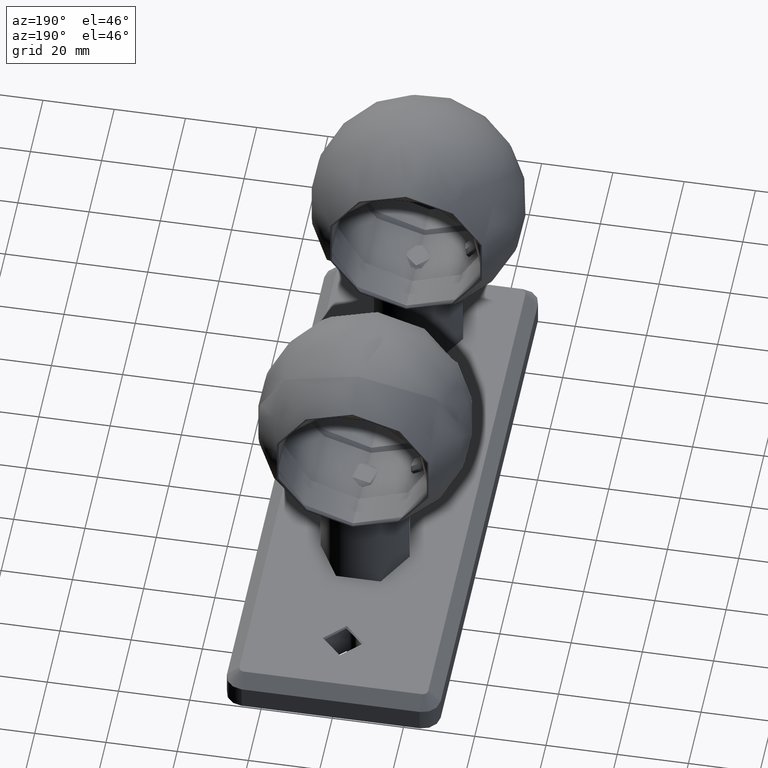
[diagram: clean part render]
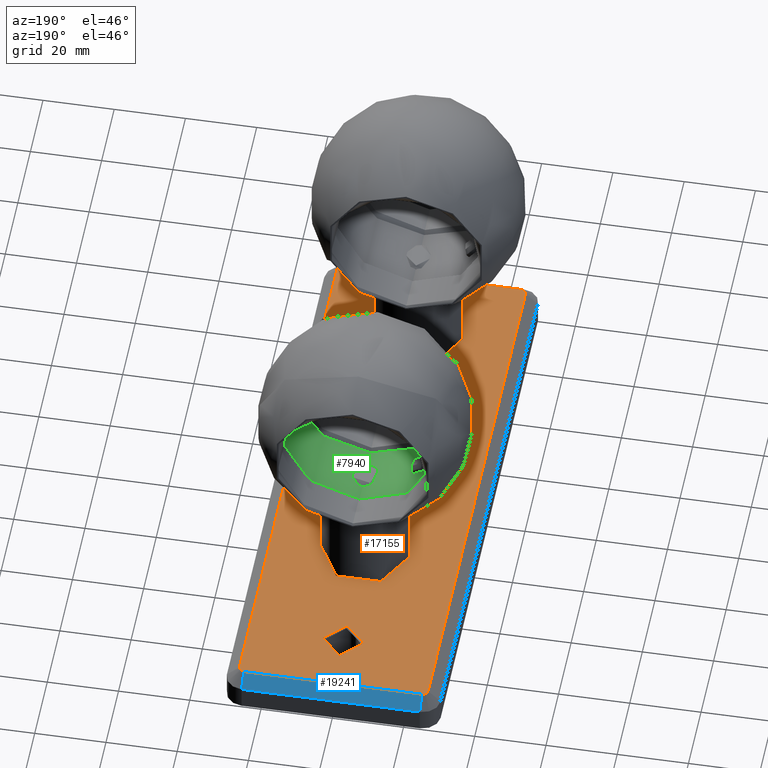
[diagram: same view with three faces highlighted in distinct colors, each labeled with its STEP entity id]
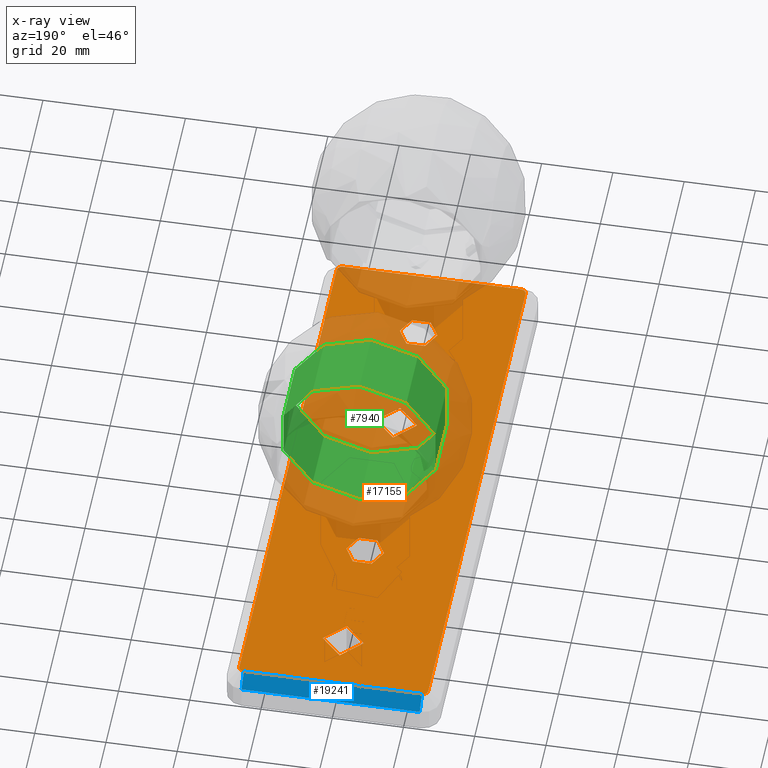
[diagram: x-ray of the same camera — body ghosted, the three highlighted faces saturated]
A machine part, auxiliary view with three faces highlighted in distinct colors.
The next image is the same camera in x-ray (body ghosted, the three faces saturated) — at least one of them is partly hidden behind the body in this view.
Their STEP definitions:

[orange] entity #17155 — the highlighted planar face has unit normal (0, 0, 1).
#44 = CARTESIAN_POINT ( 'NONE',  ( -26.50000000000001800, -77.49999999999995700, 10.00000000000000000 ) ) ;
#139 = FACE_OUTER_BOUND ( 'NONE', #4693, .T. ) ;
#731 = CARTESIAN_POINT ( 'NONE',  ( -1.734723475976807100E-014, -57.49999999999997200, 10.00000000000000000 ) ) ;
#781 = DIRECTION ( 'NONE',  ( 0.0000000000000000000, 0.0000000000000000000, 1.000000000000000000 ) ) ;
#876 = VERTEX_POINT ( 'NONE', #16998 ) ;
#942 = ORIENTED_EDGE ( 'NONE', *, *, #17408, .F. ) ;
#949 = EDGE_LOOP ( 'NONE', ( #942 ) ) ;
#980 = DIRECTION ( 'NONE',  ( 1.000000000000000000, 0.0000000000000000000, 0.0000000000000000000 ) ) ;
#1466 = CARTESIAN_POINT ( 'NONE',  ( 5.750000000000005300, 62.50000000000002800, 10.00000000000000000 ) ) ;
#1741 = CARTESIAN_POINT ( 'NONE',  ( -24.99999999999996100, -79.00000000000000000, 10.00000000000000000 ) ) ;
#2012 = VERTEX_POINT ( 'NONE', #5234 ) ;
#2332 = VECTOR ( 'NONE', #9188, 1000.000000000000000 ) ;
#2532 = FACE_BOUND ( 'NONE', #9348, .T. ) ;
#2556 = DIRECTION ( 'NONE',  ( 1.000000000000000000, 0.0000000000000000000, 0.0000000000000000000 ) ) ;
#2588 = DIRECTION ( 'NONE',  ( 1.000000000000000000, 0.0000000000000000000, 0.0000000000000000000 ) ) ;
#3309 = ORIENTED_EDGE ( 'NONE', *, *, #5680, .T. ) ;
#3859 = DIRECTION ( 'NONE',  ( 0.0000000000000000000, 0.0000000000000000000, 1.000000000000000000 ) ) ;
#3908 = CARTESIAN_POINT ( 'NONE',  ( -6.735557395310445800E-015, 27.50000000000003200, 10.00000000000000000 ) ) ;
#3960 = FACE_BOUND ( 'NONE', #18240, .T. ) ;
#4006 = VECTOR ( 'NONE', #18345, 1000.000000000000000 ) ;
#4008 = ORIENTED_EDGE ( 'NONE', *, *, #4684, .T. ) ;
#4118 = AXIS2_PLACEMENT_3D ( 'NONE', #16008, #9914, #5354 ) ;
#4120 = CARTESIAN_POINT ( 'NONE',  ( 25.00000000000000000, -77.49999999999997200, 10.00000000000000000 ) ) ;
#4429 = VERTEX_POINT ( 'NONE', #12190 ) ;
#4473 = AXIS2_PLACEMENT_3D ( 'NONE', #12085, #5746, #7225 ) ;
#4684 = EDGE_CURVE ( 'NONE', #4429, #19263, #7451, .T. ) ;
#4693 = EDGE_LOOP ( 'NONE', ( #16748, #19088, #4008, #17733, #6292, #16133, #3309, #18596 ) ) ;
#5234 = CARTESIAN_POINT ( 'NONE',  ( 26.50000000000000700, 77.50000000000000000, 10.00000000000000000 ) ) ;
#5279 = CARTESIAN_POINT ( 'NONE',  ( -24.99999999999997900, 79.00000000000005700, 10.00000000000000000 ) ) ;
#5354 = DIRECTION ( 'NONE',  ( 1.000000000000000000, 0.0000000000000000000, 0.0000000000000000000 ) ) ;
#5401 = EDGE_CURVE ( 'NONE', #8980, #8980, #19690, .T. ) ;
#5405 = CARTESIAN_POINT ( 'NONE',  ( 0.0000000000000000000, -22.49999999999997900, 10.00000000000000000 ) ) ;
#5572 = AXIS2_PLACEMENT_3D ( 'NONE', #3908, #781, #6946 ) ;
#5674 = CARTESIAN_POINT ( 'NONE',  ( 24.99999999999996800, -79.00000000000000000, 10.00000000000000000 ) ) ;
#5680 = EDGE_CURVE ( 'NONE', #876, #9079, #7434, .T. ) ;
#5746 = DIRECTION ( 'NONE',  ( 0.0000000000000000000, 0.0000000000000000000, 1.000000000000000000 ) ) ;
#5838 = VERTEX_POINT ( 'NONE', #44 ) ;
#6292 = ORIENTED_EDGE ( 'NONE', *, *, #13957, .T. ) ;
#6407 = CIRCLE ( 'NONE', #4118, 5.750000000000005300 ) ;
#6946 = DIRECTION ( 'NONE',  ( 1.000000000000000000, 0.0000000000000000000, 0.0000000000000000000 ) ) ;
#7225 = DIRECTION ( 'NONE',  ( 1.000000000000000000, 0.0000000000000000000, 0.0000000000000000000 ) ) ;
#7259 = CARTESIAN_POINT ( 'NONE',  ( -24.99999999999999300, -77.49999999999997200, 10.00000000000000000 ) ) ;
#7433 = EDGE_CURVE ( 'NONE', #7495, #876, #18916, .T. ) ;
#7434 = CIRCLE ( 'NONE', #4473, 1.500000000000025500 ) ;
#7451 = CIRCLE ( 'NONE', #14849, 1.500000000000025500 ) ;
#7495 = VERTEX_POINT ( 'NONE', #9228 ) ;
#7566 = CARTESIAN_POINT ( 'NONE',  ( 5.249999999999991100, 27.50000000000003200, 10.00000000000000000 ) ) ;
#7973 = AXIS2_PLACEMENT_3D ( 'NONE', #5405, #13074, #2588 ) ;
#8079 = FACE_BOUND ( 'NONE', #8171, .T. ) ;
#8171 = EDGE_LOOP ( 'NONE', ( #15517 ) ) ;
#8796 = CIRCLE ( 'NONE', #5572, 5.249999999999997300 ) ;
#8980 = VERTEX_POINT ( 'NONE', #11835 ) ;
#9030 = EDGE_CURVE ( 'NONE', #19263, #2012, #19114, .T. ) ;
#9060 = PLANE ( 'NONE',  #12096 ) ;
#9079 = VERTEX_POINT ( 'NONE', #9778 ) ;
#9188 = DIRECTION ( 'NONE',  ( -1.566847010559697300E-016, 1.000000000000000000, 0.0000000000000000000 ) ) ;
#9228 = CARTESIAN_POINT ( 'NONE',  ( 24.99999999999996800, 79.00000000000005700, 10.00000000000000000 ) ) ;
#9348 = EDGE_LOOP ( 'NONE', ( #17568 ) ) ;
#9778 = CARTESIAN_POINT ( 'NONE',  ( -26.50000000000003900, 77.50000000000000000, 10.00000000000000000 ) ) ;
#9914 = DIRECTION ( 'NONE',  ( -0.0000000000000000000, -0.0000000000000000000, -1.000000000000000000 ) ) ;
#9942 = EDGE_CURVE ( 'NONE', #9079, #5838, #15264, .T. ) ;
#10630 = VERTEX_POINT ( 'NONE', #1466 ) ;
#10696 = CARTESIAN_POINT ( 'NONE',  ( 5.249999999999980500, -57.49999999999997200, 10.00000000000000000 ) ) ;
#10904 = CIRCLE ( 'NONE', #18710, 1.500000000000029100 ) ;
#11341 = VERTEX_POINT ( 'NONE', #10696 ) ;
#11777 = EDGE_CURVE ( 'NONE', #10630, #10630, #6407, .T. ) ;
#11835 = CARTESIAN_POINT ( 'NONE',  ( 5.750000000000005300, -22.49999999999997900, 10.00000000000000000 ) ) ;
#12085 = CARTESIAN_POINT ( 'NONE',  ( -25.00000000000001100, 77.50000000000002800, 10.00000000000000000 ) ) ;
#12096 = AXIS2_PLACEMENT_3D ( 'NONE', #16496, #18245, #19788 ) ;
#12110 = VECTOR ( 'NONE', #980, 1000.000000000000000 ) ;
#12180 = VERTEX_POINT ( 'NONE', #1741 ) ;
#12190 = CARTESIAN_POINT ( 'NONE',  ( 24.99999999999996800, -79.00000000000000000, 10.00000000000000000 ) ) ;
#12416 = VECTOR ( 'NONE', #16406, 1000.000000000000000 ) ;
#12852 = ORIENTED_EDGE ( 'NONE', *, *, #5401, .T. ) ;
#12941 = DIRECTION ( 'NONE',  ( 0.0000000000000000000, 0.0000000000000000000, 1.000000000000000000 ) ) ;
#13074 = DIRECTION ( 'NONE',  ( -0.0000000000000000000, -0.0000000000000000000, -1.000000000000000000 ) ) ;
#13482 = DIRECTION ( 'NONE',  ( 0.0000000000000000000, 0.0000000000000000000, 1.000000000000000000 ) ) ;
#13780 = CIRCLE ( 'NONE', #17257, 5.249999999999997300 ) ;
#13957 = EDGE_CURVE ( 'NONE', #2012, #7495, #14329, .T. ) ;
#14329 = CIRCLE ( 'NONE', #18020, 1.500000000000029100 ) ;
#14579 = DIRECTION ( 'NONE',  ( 1.000000000000000000, 0.0000000000000000000, 0.0000000000000000000 ) ) ;
#14744 = DIRECTION ( 'NONE',  ( 0.0000000000000000000, 0.0000000000000000000, 1.000000000000000000 ) ) ;
#14849 = AXIS2_PLACEMENT_3D ( 'NONE', #4120, #13482, #14899 ) ;
#14899 = DIRECTION ( 'NONE',  ( 1.000000000000000000, 0.0000000000000000000, 0.0000000000000000000 ) ) ;
#15264 = LINE ( 'NONE', #18469, #4006 ) ;
#15503 = LINE ( 'NONE', #5674, #12110 ) ;
#15517 = ORIENTED_EDGE ( 'NONE', *, *, #16425, .F. ) ;
#16008 = CARTESIAN_POINT ( 'NONE',  ( 0.0000000000000000000, 62.50000000000002800, 10.00000000000000000 ) ) ;
#16133 = ORIENTED_EDGE ( 'NONE', *, *, #7433, .T. ) ;
#16375 = CARTESIAN_POINT ( 'NONE',  ( 26.50000000000002800, -77.49999999999995700, 10.00000000000000000 ) ) ;
#16392 = VERTEX_POINT ( 'NONE', #7566 ) ;
#16406 = DIRECTION ( 'NONE',  ( -1.000000000000000000, 0.0000000000000000000, 0.0000000000000000000 ) ) ;
#16425 = EDGE_CURVE ( 'NONE', #16392, #16392, #8796, .T. ) ;
#16449 = EDGE_CURVE ( 'NONE', #12180, #4429, #15503, .T. ) ;
#16496 = CARTESIAN_POINT ( 'NONE',  ( 25.00000000000000000, -77.49999999999997200, 10.00000000000000000 ) ) ;
#16748 = ORIENTED_EDGE ( 'NONE', *, *, #19110, .T. ) ;
#16812 = CARTESIAN_POINT ( 'NONE',  ( 26.50000000000000400, 77.50000000000000000, 10.00000000000000000 ) ) ;
#16998 = CARTESIAN_POINT ( 'NONE',  ( -25.00000000000000000, 79.00000000000005700, 10.00000000000000000 ) ) ;
#17155 = ADVANCED_FACE ( 'NONE', ( #17885, #8079, #139, #2532, #3960 ), #9060, .T. ) ;
#17257 = AXIS2_PLACEMENT_3D ( 'NONE', #731, #3859, #14579 ) ;
#17398 = DIRECTION ( 'NONE',  ( 1.000000000000000000, 0.0000000000000000000, 0.0000000000000000000 ) ) ;
#17408 = EDGE_CURVE ( 'NONE', #11341, #11341, #13780, .T. ) ;
#17568 = ORIENTED_EDGE ( 'NONE', *, *, #11777, .T. ) ;
#17733 = ORIENTED_EDGE ( 'NONE', *, *, #9030, .T. ) ;
#17885 = FACE_BOUND ( 'NONE', #949, .T. ) ;
#18020 = AXIS2_PLACEMENT_3D ( 'NONE', #19204, #12941, #17398 ) ;
#18240 = EDGE_LOOP ( 'NONE', ( #12852 ) ) ;
#18245 = DIRECTION ( 'NONE',  ( 0.0000000000000000000, 0.0000000000000000000, 1.000000000000000000 ) ) ;
#18345 = DIRECTION ( 'NONE',  ( 1.119176436114069600E-016, -1.000000000000000000, 0.0000000000000000000 ) ) ;
#18469 = CARTESIAN_POINT ( 'NONE',  ( -26.50000000000001800, -77.49999999999994300, 10.00000000000000000 ) ) ;
#18596 = ORIENTED_EDGE ( 'NONE', *, *, #9942, .T. ) ;
#18710 = AXIS2_PLACEMENT_3D ( 'NONE', #7259, #14744, #2556 ) ;
#18916 = LINE ( 'NONE', #5279, #12416 ) ;
#19088 = ORIENTED_EDGE ( 'NONE', *, *, #16449, .T. ) ;
#19110 = EDGE_CURVE ( 'NONE', #5838, #12180, #10904, .T. ) ;
#19114 = LINE ( 'NONE', #16812, #2332 ) ;
#19204 = CARTESIAN_POINT ( 'NONE',  ( 24.99999999999997900, 77.50000000000002800, 10.00000000000000000 ) ) ;
#19263 = VERTEX_POINT ( 'NONE', #16375 ) ;
#19690 = CIRCLE ( 'NONE', #7973, 5.750000000000005300 ) ;
#19788 = DIRECTION ( 'NONE',  ( 1.000000000000000000, 0.0000000000000000000, -0.0000000000000000000 ) ) ;

[blue] entity #19241 — the highlighted planar face has unit normal (0, 0.7071, 0.7071).
#415 = CARTESIAN_POINT ( 'NONE',  ( -25.00000000000000000, 79.00000000000005700, 10.00000000000000000 ) ) ;
#480 = DIRECTION ( 'NONE',  ( 4.906538933386820900E-015, 0.7071067811865461300, -0.7071067811865489100 ) ) ;
#876 = VERTEX_POINT ( 'NONE', #16998 ) ;
#1841 = EDGE_LOOP ( 'NONE', ( #13103, #6544, #7662, #9375 ) ) ;
#2299 = VERTEX_POINT ( 'NONE', #13878 ) ;
#2601 = LINE ( 'NONE', #6013, #8367 ) ;
#4016 = PLANE ( 'NONE',  #19734 ) ;
#5279 = CARTESIAN_POINT ( 'NONE',  ( -24.99999999999997900, 79.00000000000005700, 10.00000000000000000 ) ) ;
#6013 = CARTESIAN_POINT ( 'NONE',  ( 24.99999999999994300, 82.50000000000002800, 6.500000000000009800 ) ) ;
#6544 = ORIENTED_EDGE ( 'NONE', *, *, #7492, .F. ) ;
#6944 = VECTOR ( 'NONE', #13672, 1000.000000000000100 ) ;
#7071 = DIRECTION ( 'NONE',  ( 0.0000000000000000000, 0.7071067811865489100, 0.7071067811865461300 ) ) ;
#7433 = EDGE_CURVE ( 'NONE', #7495, #876, #18916, .T. ) ;
#7492 = EDGE_CURVE ( 'NONE', #2299, #10062, #2601, .T. ) ;
#7495 = VERTEX_POINT ( 'NONE', #9228 ) ;
#7527 = VECTOR ( 'NONE', #480, 1000.000000000000100 ) ;
#7662 = ORIENTED_EDGE ( 'NONE', *, *, #19585, .F. ) ;
#8044 = FACE_OUTER_BOUND ( 'NONE', #1841, .T. ) ;
#8367 = VECTOR ( 'NONE', #16730, 1000.000000000000000 ) ;
#9228 = CARTESIAN_POINT ( 'NONE',  ( 24.99999999999996800, 79.00000000000005700, 10.00000000000000000 ) ) ;
#9375 = ORIENTED_EDGE ( 'NONE', *, *, #7433, .F. ) ;
#10062 = VERTEX_POINT ( 'NONE', #14081 ) ;
#12416 = VECTOR ( 'NONE', #16406, 1000.000000000000000 ) ;
#12678 = LINE ( 'NONE', #18072, #6944 ) ;
#12705 = EDGE_CURVE ( 'NONE', #10062, #7495, #12678, .T. ) ;
#13103 = ORIENTED_EDGE ( 'NONE', *, *, #12705, .F. ) ;
#13113 = CARTESIAN_POINT ( 'NONE',  ( 25.00000000000000000, 79.00000000000005700, 10.00000000000000000 ) ) ;
#13246 = LINE ( 'NONE', #415, #7527 ) ;
#13672 = DIRECTION ( 'NONE',  ( 4.906538933386820900E-015, -0.7071067811865461300, 0.7071067811865489100 ) ) ;
#13878 = CARTESIAN_POINT ( 'NONE',  ( -24.99999999999997900, 82.50000000000002800, 6.500000000000009800 ) ) ;
#14081 = CARTESIAN_POINT ( 'NONE',  ( 24.99999999999994300, 82.50000000000002800, 6.500000000000009800 ) ) ;
#16406 = DIRECTION ( 'NONE',  ( -1.000000000000000000, 0.0000000000000000000, 0.0000000000000000000 ) ) ;
#16730 = DIRECTION ( 'NONE',  ( 1.000000000000000000, 0.0000000000000000000, -0.0000000000000000000 ) ) ;
#16998 = CARTESIAN_POINT ( 'NONE',  ( -25.00000000000000000, 79.00000000000005700, 10.00000000000000000 ) ) ;
#17839 = DIRECTION ( 'NONE',  ( 1.000000000000000000, 0.0000000000000000000, -0.0000000000000000000 ) ) ;
#18072 = CARTESIAN_POINT ( 'NONE',  ( 24.99999999999994300, 82.50000000000002800, 6.500000000000009800 ) ) ;
#18916 = LINE ( 'NONE', #5279, #12416 ) ;
#19241 = ADVANCED_FACE ( 'NONE', ( #8044 ), #4016, .T. ) ;
#19585 = EDGE_CURVE ( 'NONE', #876, #2299, #13246, .T. ) ;
#19734 = AXIS2_PLACEMENT_3D ( 'NONE', #13113, #7071, #17839 ) ;

[green] entity #7940 — the highlighted cylindrical surface (bore or boss wall) has radius 22.4 mm, axis along (0, 1, -0).
#146 = CARTESIAN_POINT ( 'NONE',  ( 14.23180294295915100, -17.29809392864934400, 1.255161316992526200 ) ) ;
#214 = CARTESIAN_POINT ( 'NONE',  ( 14.72372657162309300, -16.88165770383754000, -1.987040873112125400 ) ) ;
#352 = CARTESIAN_POINT ( 'NONE',  ( 14.37177308544102400, -17.18197913373743900, 1.525736254795031900 ) ) ;
#414 = CARTESIAN_POINT ( 'NONE',  ( 16.60366000801255000, -15.03665953697863100, 2.246944159325867700 ) ) ;
#835 = CARTESIAN_POINT ( 'NONE',  ( -3.381229161728245300, -22.14388651527171700, -2.589809467101668700 ) ) ;
#904 = CARTESIAN_POINT ( 'NONE',  ( 0.2793903094913985900, -22.39997881464016100, 4.249888340683049200 ) ) ;
#969 = CARTESIAN_POINT ( 'NONE',  ( -1.102772667337543100, -22.37453273750551800, 4.114012170372199700 ) ) ;
#1038 = CARTESIAN_POINT ( 'NONE',  ( -2.806484994288363000, -22.22437363326164900, 3.203573374689784500 ) ) ;
#1105 = CARTESIAN_POINT ( 'NONE',  ( -1.370036804117446200, -22.35953521212897900, 4.032640918888476200 ) ) ;
#1129 = EDGE_CURVE ( 'NONE', #8489, #8489, #5439, .T. ) ;
#1402 = CARTESIAN_POINT ( 'NONE',  ( 5.769681143266754000E-016, -22.39999999999999900, 8.999999999999994700 ) ) ;
#1691 = CARTESIAN_POINT ( 'NONE',  ( 15.26069044189714700, -16.39799669997854900, 2.372786764431972500 ) ) ;
#1760 = CARTESIAN_POINT ( 'NONE',  ( 17.34757095800194900, -14.17129949449242300, -1.110023786371461900 ) ) ;
#1887 = CARTESIAN_POINT ( 'NONE',  ( 16.60298161030034300, -15.03741913451956700, -2.247523387273374000 ) ) ;
#1956 = CARTESIAN_POINT ( 'NONE',  ( 17.50800202109671800, -13.97246811516406600, -2.710505431213761100E-017 ) ) ;
#1984 = CARTESIAN_POINT ( 'NONE',  ( -9.992007221626435700E-015, 0.0000000000000000000, 20.00000000000000000 ) ) ;
#2362 = CARTESIAN_POINT ( 'NONE',  ( 7.399679827213567800E-015, -22.40000000000000200, -4.249999999999996400 ) ) ;
#2429 = CARTESIAN_POINT ( 'NONE',  ( 4.113254262682360700, -22.01917892574492100, -1.105418786180584900 ) ) ;
#2503 = CARTESIAN_POINT ( 'NONE',  ( 3.687119230508119700, -22.09500749982742500, 2.131688158930242800 ) ) ;
#2521 = CARTESIAN_POINT ( 'NONE',  ( 0.5580876747909817600, -22.39470100435249500, -4.222317618681615600 ) ) ;
#2564 = CARTESIAN_POINT ( 'NONE',  ( -0.2759828656612261000, -22.40002105577642800, 4.250110976336125100 ) ) ;
#2630 = CARTESIAN_POINT ( 'NONE',  ( -2.129875098588231100, -22.29972713827514100, 3.688314374133246700 ) ) ;
#2996 = CARTESIAN_POINT ( 'NONE',  ( 17.50800202109671100, -13.97246811516406800, 0.0000000000000000000 ) ) ;
#3117 = CIRCLE ( 'NONE', #3451, 22.39999999999999900 ) ;
#3184 = VERTEX_POINT ( 'NONE', #1402 ) ;
#3218 = CARTESIAN_POINT ( 'NONE',  ( 15.95440376753392700, -15.72400416096860600, -2.500152888468754500 ) ) ;
#3351 = CARTESIAN_POINT ( 'NONE',  ( 14.07262869436487500, -17.42770890272588600, -0.8051304666978107400 ) ) ;
#3418 = CARTESIAN_POINT ( 'NONE',  ( 14.45128161655953000, -17.11531970056229900, 1.651870198939265900 ) ) ;
#3451 = AXIS2_PLACEMENT_3D ( 'NONE', #8055, #15745, #3470 ) ;
#3470 = DIRECTION ( 'NONE',  ( 2.264897930383292800E-016, -1.000000000000000000, -1.548860246407863600E-016 ) ) ;
#3538 = FACE_OUTER_BOUND ( 'NONE', #14729, .T. ) ;
#3826 = CARTESIAN_POINT ( 'NONE',  ( -1.377389292654436000, -22.35907985193055900, -4.030125698596581400 ) ) ;
#3959 = CARTESIAN_POINT ( 'NONE',  ( -4.249791719418325900, -21.99316417403520100, 0.2838358221729863600 ) ) ;
#4023 = CARTESIAN_POINT ( 'NONE',  ( -4.250205966580487000, -21.99308412401829600, -0.2775638197402542900 ) ) ;
#4047 = CARTESIAN_POINT ( 'NONE',  ( 1.886766795036256500, -22.32188631834007400, -3.818397266092758500 ) ) ;
#4097 = CARTESIAN_POINT ( 'NONE',  ( -3.689853646297248400, -22.09455590669930200, -2.127158618654900700 ) ) ;
#4191 = CARTESIAN_POINT ( 'NONE',  ( 7.399679827213567800E-015, -22.40000000000000200, -4.249999999999996400 ) ) ;
#4265 = CARTESIAN_POINT ( 'NONE',  ( 17.29907926979014100, -14.23060630280774100, 1.252563013485072500 ) ) ;
#4495 = FACE_OUTER_BOUND ( 'NONE', #19793, .T. ) ;
#4754 = CARTESIAN_POINT ( 'NONE',  ( 17.46640671433660300, -14.02499292375692400, -0.6590505337652500200 ) ) ;
#4824 = CARTESIAN_POINT ( 'NONE',  ( 16.28932956035844300, -15.37671334078180700, -2.420769703364321800 ) ) ;
#4844 = CARTESIAN_POINT ( 'NONE',  ( 17.50800202109671100, -13.97246811516407000, 0.1652999495701383800 ) ) ;
#4900 = CARTESIAN_POINT ( 'NONE',  ( 14.92848388401832200, -16.70086131182842900, 2.169296299514675000 ) ) ;
#4964 = CARTESIAN_POINT ( 'NONE',  ( 15.72478637753516000, -15.95361153368300400, 2.500089422140559800 ) ) ;
#5031 = CARTESIAN_POINT ( 'NONE',  ( 16.40009042062595800, -15.25843012527757900, 2.371668016028263700 ) ) ;
#5166 = AXIS2_PLACEMENT_3D ( 'NONE', #19077, #8307, #16130 ) ;
#5189 = EDGE_CURVE ( 'NONE', #19043, #19043, #3117, .T. ) ;
#5302 = ORIENTED_EDGE ( 'NONE', *, *, #1129, .T. ) ;
#5385 = CARTESIAN_POINT ( 'NONE',  ( -3.377888248547114000, -22.14439415604946500, 2.594037295046093500 ) ) ;
#5439 = B_SPLINE_CURVE_WITH_KNOTS ( 'NONE', 3,
 ( #4191, #16466, #2521, #13206, #18007, #4047, #19551, #5596, #7078, #17704, #8544, #14686, #17646, #14615, #2429, #11794, #16246, #17847, #8750, #7137, #17912, #11653, #2503, #10261, #16184, #17774, #19329, #7001, #10198, #8610, #19261, #19462, #904, #2564, #11593, #969, #1105, #11522, #2630, #13117, #1038, #8480, #5385, #8678, #10134, #19190, #5517, #13183, #3959, #4023, #19393, #14750, #11723, #13252, #4097, #835, #14809, #5662, #14550, #16383, #7203, #3826, #16111, #6935, #10003, #2362 ),
 .UNSPECIFIED., .T., .F.,
 ( 4, 2, 2, 2, 2, 2, 2, 2, 2, 2, 2, 2, 2, 2, 2, 2, 2, 2, 2, 2, 2, 2, 2, 2, 2, 2, 2, 2, 2, 2, 2, 2, 4 ),
 ( 0.0000000000000000000, 0.0008322473984821098700, 0.001664494796964219300, 0.002496742195446329400, 0.003328989593928439500, 0.004161236992410550000, 0.004993484390892658800, 0.005825731789374768500, 0.006657979187856877300, 0.007490226586338985200, 0.008322473984821094800, 0.009154721383303202800, 0.009986968781785310700, 0.01081921618026742000, 0.01165146357874952800, 0.01248371097723163600, 0.01331595837571374400, 0.01414820577419585200, 0.01498045317267796200, 0.01581270057116007300, 0.01664494796964218300, 0.01747719536812429200, 0.01830944276660640200, 0.01914169016508851200, 0.01997393756357062100, 0.02080618496205273400, 0.02163843236053484400, 0.02247067975901695000, 0.02330292715749906000, 0.02413517455598117000, 0.02496742195446328300, 0.02579966935294539200, 0.02663191675142749900 ),
 .UNSPECIFIED. ) ;
#5517 = CARTESIAN_POINT ( 'NONE',  ( -4.113000038080065800, -22.01922555532486200, 1.105686156404561900 ) ) ;
#5596 = CARTESIAN_POINT ( 'NONE',  ( 2.592125333856360100, -22.25072425920565800, -3.379409664009441100 ) ) ;
#5662 = CARTESIAN_POINT ( 'NONE',  ( -2.812218626840689200, -22.22364166006947900, -3.198481882603148000 ) ) ;
#5756 = ORIENTED_EDGE ( 'NONE', *, *, #13375, .T. ) ;
#5783 = AXIS2_PLACEMENT_3D ( 'NONE', #1984, #17582, #18869 ) ;
#6320 = CARTESIAN_POINT ( 'NONE',  ( 16.06903239618784700, -15.60680152972672900, 2.483998334978379400 ) ) ;
#6450 = CARTESIAN_POINT ( 'NONE',  ( 14.72512930070228200, -16.88043147285995700, 1.988427414249685400 ) ) ;
#6507 = EDGE_LOOP ( 'NONE', ( #5302 ) ) ;
#6518 = CARTESIAN_POINT ( 'NONE',  ( 13.97242062075077000, -17.50803992457556600, -0.1622827108998227100 ) ) ;
#6592 = CARTESIAN_POINT ( 'NONE',  ( 14.23008103809803500, -17.29951423784885700, -1.251517517489904900 ) ) ;
#6935 = CARTESIAN_POINT ( 'NONE',  ( -0.5593330668277029000, -22.39469847340660600, -4.222313050492871000 ) ) ;
#7001 = CARTESIAN_POINT ( 'NONE',  ( 2.134881175443226600, -22.29923065132481200, 3.685277722756175500 ) ) ;
#7078 = CARTESIAN_POINT ( 'NONE',  ( 2.810126899753032900, -22.22390853593442000, -3.200336657283315000 ) ) ;
#7114 = CARTESIAN_POINT ( 'NONE',  ( 9.569774613790465700E-015, -22.39999999999999100, -9.000000000000007100 ) ) ;
#7137 = CARTESIAN_POINT ( 'NONE',  ( 4.113721150401129700, -22.01909076590482400, 1.103249771100770000 ) ) ;
#7203 = CARTESIAN_POINT ( 'NONE',  ( -1.888482987751430900, -22.32172226987647400, -3.817426674473405800 ) ) ;
#7862 = CARTESIAN_POINT ( 'NONE',  ( 16.87939012192066800, -14.72632777994629700, -1.989682438235467000 ) ) ;
#7940 = ADVANCED_FACE ( 'NONE', ( #14564, #10992, #3538, #4495 ), #9782, .F. ) ;
#8003 = CARTESIAN_POINT ( 'NONE',  ( 14.03575765690039700, -17.45733503761147500, 0.6504770844874592200 ) ) ;
#8055 = CARTESIAN_POINT ( 'NONE',  ( 4.496403249731889500E-015, 6.938893903907228400E-015, -9.000000000000005300 ) ) ;
#8071 = CARTESIAN_POINT ( 'NONE',  ( 16.96380083149357900, -14.62883596867703200, -1.884283014942367700 ) ) ;
#8307 = DIRECTION ( 'NONE',  ( -4.996003610813217300E-016, -1.283860231324760900E-016, 1.000000000000000000 ) ) ;
#8480 = CARTESIAN_POINT ( 'NONE',  ( -3.198597987103107600, -22.17133537545452500, 2.812154211114138200 ) ) ;
#8489 = VERTEX_POINT ( 'NONE', #17815 ) ;
#8544 = CARTESIAN_POINT ( 'NONE',  ( 3.376828159768832100, -22.14456546517204700, -2.595681426781961700 ) ) ;
#8610 = CARTESIAN_POINT ( 'NONE',  ( 1.372328269782243200, -22.35940647534839300, 4.031944360648865600 ) ) ;
#8619 = CIRCLE ( 'NONE', #5166, 22.39999999999999900 ) ;
#8678 = CARTESIAN_POINT ( 'NONE',  ( -3.685894091989874200, -22.09521455656820900, 2.133856426847145400 ) ) ;
#8750 = CARTESIAN_POINT ( 'NONE',  ( 4.222421040874363200, -21.99850495861012700, 0.5576937459511039900 ) ) ;
#9328 = CARTESIAN_POINT ( 'NONE',  ( 15.60627636063038200, -16.06953224685302200, 2.483834064286995200 ) ) ;
#9400 = CARTESIAN_POINT ( 'NONE',  ( 17.11397907618126300, -14.45285787064520000, -1.654016293879034800 ) ) ;
#9467 = CARTESIAN_POINT ( 'NONE',  ( 14.45064203878120600, -17.11584882634435100, -1.650725206151822300 ) ) ;
#9531 = CARTESIAN_POINT ( 'NONE',  ( 15.25756992265577800, -16.40089891991116700, -2.371336732087559400 ) ) ;
#9595 = CARTESIAN_POINT ( 'NONE',  ( 15.03446459928317800, -16.60565564916889200, -2.245555128984762400 ) ) ;
#9662 = CARTESIAN_POINT ( 'NONE',  ( 17.34793454115846200, -14.17085560980219600, 1.109021719460073100 ) ) ;
#9782 = CYLINDRICAL_SURFACE ( 'NONE', #5783, 22.39999999999999900 ) ;
#10003 = CARTESIAN_POINT ( 'NONE',  ( -0.2814583715935644600, -22.40000000000000200, -4.249999999999996400 ) ) ;
#10058 = CARTESIAN_POINT ( 'NONE',  ( 17.49782480772762100, -13.98524757838978200, 0.3278116828299284500 ) ) ;
#10134 = CARTESIAN_POINT ( 'NONE',  ( -3.816759474148304400, -22.07270271882219200, 1.890172785956719700 ) ) ;
#10198 = CARTESIAN_POINT ( 'NONE',  ( 1.886105853679074000, -22.32193870430193900, 3.818699374935037700 ) ) ;
#10261 = CARTESIAN_POINT ( 'NONE',  ( 3.379858159470626100, -22.14409093774845500, 2.591428457196150300 ) ) ;
#10861 = CARTESIAN_POINT ( 'NONE',  ( 14.07288675997869200, -17.42750239097280800, 0.8063012236523319200 ) ) ;
#10931 = CARTESIAN_POINT ( 'NONE',  ( 17.29811605802764500, -14.23178218474488500, -1.255310786386041300 ) ) ;
#10992 = FACE_BOUND ( 'NONE', #6507, .T. ) ;
#10997 = CARTESIAN_POINT ( 'NONE',  ( 13.98483500299943600, -17.49815489772006000, -0.3245818265818877200 ) ) ;
#11069 = CARTESIAN_POINT ( 'NONE',  ( 16.29228371519350600, -15.37359904126733300, 2.419728424860238200 ) ) ;
#11141 = CARTESIAN_POINT ( 'NONE',  ( 17.18077490772142800, -14.37321873768103100, -1.528339313657753200 ) ) ;
#11522 = CARTESIAN_POINT ( 'NONE',  ( -1.881774981662124800, -22.32229241510517100, 3.820748165440969000 ) ) ;
#11593 = CARTESIAN_POINT ( 'NONE',  ( -0.5524299516102447700, -22.39487985960398600, 4.223271817248001300 ) ) ;
#11653 = CARTESIAN_POINT ( 'NONE',  ( 3.819888049395168600, -22.07215899804527500, 1.883807985870441500 ) ) ;
#11723 = CARTESIAN_POINT ( 'NONE',  ( -4.032916359307511900, -22.03422928592280200, -1.369440452468355400 ) ) ;
#11794 = CARTESIAN_POINT ( 'NONE',  ( 4.222685952361968200, -21.99845504896124400, -0.5565381119388441700 ) ) ;
#12386 = CARTESIAN_POINT ( 'NONE',  ( 15.72068551390935000, -15.95767380931253000, -2.499844940989814500 ) ) ;
#12441 = EDGE_CURVE ( 'NONE', #3184, #3184, #8619, .T. ) ;
#12463 = CARTESIAN_POINT ( 'NONE',  ( 13.97251588027893700, -17.50796390158107800, 0.1641379096419770500 ) ) ;
#12525 = CARTESIAN_POINT ( 'NONE',  ( 16.69911336252547300, -14.93044385394936800, -2.170847533557654300 ) ) ;
#12595 = CARTESIAN_POINT ( 'NONE',  ( 15.60450107608442800, -16.07125056100210600, -2.483470993892164200 ) ) ;
#12655 = CARTESIAN_POINT ( 'NONE',  ( 14.62635077755337700, -16.96594233490223000, -1.881412498324669800 ) ) ;
#13099 = CARTESIAN_POINT ( 'NONE',  ( 16.88212055823415300, -14.72320416656499200, 1.986593561075681100 ) ) ;
#13117 = CARTESIAN_POINT ( 'NONE',  ( -2.592891567969074700, -22.25064295012317200, 3.378896887266468000 ) ) ;
#13183 = CARTESIAN_POINT ( 'NONE',  ( -4.221762885592830200, -21.99863135532183400, 0.5621648579751217200 ) ) ;
#13206 = CARTESIAN_POINT ( 'NONE',  ( 1.102121392764763300, -22.37452621537963900, -4.113970875126979000 ) ) ;
#13252 = CARTESIAN_POINT ( 'NONE',  ( -3.820164320116696400, -22.07210953110498900, -1.883116056257341900 ) ) ;
#13375 = EDGE_CURVE ( 'NONE', #15912, #15912, #19825, .T. ) ;
#13916 = CARTESIAN_POINT ( 'NONE',  ( 16.39797268737549600, -15.26071637647699900, -2.372799686190978800 ) ) ;
#13992 = CARTESIAN_POINT ( 'NONE',  ( 15.95554302804132800, -15.72282653555334300, 2.499909820734372200 ) ) ;
#14059 = CARTESIAN_POINT ( 'NONE',  ( 15.37454769749871800, -16.29137844304024800, 2.420009371673455400 ) ) ;
#14136 = CARTESIAN_POINT ( 'NONE',  ( 14.03503697417066400, -17.45791430897131800, -0.6473152855611610200 ) ) ;
#14529 = ORIENTED_EDGE ( 'NONE', *, *, #12441, .T. ) ;
#14550 = CARTESIAN_POINT ( 'NONE',  ( -2.598643638696738200, -22.24998554376759700, -3.374622928815801600 ) ) ;
#14564 = FACE_BOUND ( 'NONE', #18834, .T. ) ;
#14615 = CARTESIAN_POINT ( 'NONE',  ( 4.031304168784688000, -22.03452283424480400, -1.373914731113783100 ) ) ;
#14686 = CARTESIAN_POINT ( 'NONE',  ( 3.687522230379469700, -22.09495254265904400, -2.131363481531439100 ) ) ;
#14729 = EDGE_LOOP ( 'NONE', ( #19184 ) ) ;
#14750 = CARTESIAN_POINT ( 'NONE',  ( -4.114945302287535100, -22.01886104553246400, -1.098531824954896100 ) ) ;
#14809 = CARTESIAN_POINT ( 'NONE',  ( -3.202717896094496200, -22.17073341859402200, -2.807393459514780300 ) ) ;
#15626 = CARTESIAN_POINT ( 'NONE',  ( 17.50800202109672900, -13.97246811516406100, -0.3305998991402767700 ) ) ;
#15700 = CARTESIAN_POINT ( 'NONE',  ( 15.03741265004044600, -16.60298736156605400, 2.247518120753406700 ) ) ;
#15745 = DIRECTION ( 'NONE',  ( -4.996003610813217300E-016, -1.283860231324760900E-016, 1.000000000000000000 ) ) ;
#15761 = CARTESIAN_POINT ( 'NONE',  ( 13.98544255274957500, -17.49766945116969600, 0.3299203396992672600 ) ) ;
#15912 = VERTEX_POINT ( 'NONE', #2996 ) ;
#16111 = CARTESIAN_POINT ( 'NONE',  ( -1.108036224024592200, -22.37426264529619900, -4.112546255333627200 ) ) ;
#16130 = DIRECTION ( 'NONE',  ( 2.264897930383292800E-016, -1.000000000000000000, -1.548860246407863600E-016 ) ) ;
#16184 = CARTESIAN_POINT ( 'NONE',  ( 3.203514079399803800, -22.17063928817187300, 2.806795742245662400 ) ) ;
#16246 = CARTESIAN_POINT ( 'NONE',  ( 4.249835662265931000, -21.99315568242759200, -0.2803684636479180100 ) ) ;
#16383 = CARTESIAN_POINT ( 'NONE',  ( -2.133051143601683000, -22.29943717400923500, -3.686613824556066000 ) ) ;
#16466 = CARTESIAN_POINT ( 'NONE',  ( 0.2814583715935802300, -22.39999999999999900, -4.249999999999996400 ) ) ;
#17018 = CARTESIAN_POINT ( 'NONE',  ( 16.06813901041498800, -15.60770577094933000, -2.484061342809669600 ) ) ;
#17133 = CARTESIAN_POINT ( 'NONE',  ( 17.11470241558193500, -14.45200062910482700, 1.652743073112263000 ) ) ;
#17156 = CARTESIAN_POINT ( 'NONE',  ( 14.17084470792544000, -17.34794344037378600, 1.108993463125810300 ) ) ;
#17231 = CARTESIAN_POINT ( 'NONE',  ( 14.37116054517790800, -17.18249527283783000, -1.524862192126562600 ) ) ;
#17299 = CARTESIAN_POINT ( 'NONE',  ( 14.92759762138948400, -16.70165621246421800, -2.168645400895517800 ) ) ;
#17574 = CARTESIAN_POINT ( 'NONE',  ( 17.45781851958294700, -14.03515569447279000, 0.6474947785392684000 ) ) ;
#17582 = DIRECTION ( 'NONE',  ( -4.996003610813217300E-016, -1.283860231324760900E-016, 1.000000000000000000 ) ) ;
#17646 = CARTESIAN_POINT ( 'NONE',  ( 3.819140694570773800, -22.07228520541518800, -1.884998499921357200 ) ) ;
#17704 = CARTESIAN_POINT ( 'NONE',  ( 3.201141020058649600, -22.17096344266511600, -2.809210579925401700 ) ) ;
#17774 = CARTESIAN_POINT ( 'NONE',  ( 2.808378135827944700, -22.22414815351414700, 3.202126955916130500 ) ) ;
#17815 = CARTESIAN_POINT ( 'NONE',  ( 7.196672898654174600E-015, -22.39999999999999500, -4.249999999999996400 ) ) ;
#17847 = CARTESIAN_POINT ( 'NONE',  ( 4.250162864438602000, -21.99309245316610300, 0.2753638636834220300 ) ) ;
#17853 = CARTESIAN_POINT ( 'NONE',  ( 16.96464306115729700, -14.62785858439641900, 1.883154062247554900 ) ) ;
#17912 = CARTESIAN_POINT ( 'NONE',  ( 4.033303743380660200, -22.03416003523925000, 1.368480234118429000 ) ) ;
#18007 = CARTESIAN_POINT ( 'NONE',  ( 1.372390226574823800, -22.35940613732286400, -4.031946389345714400 ) ) ;
#18112 = CARTESIAN_POINT ( 'NONE',  ( 17.42749566048480100, -14.07289510235776900, 0.8063324314295131600 ) ) ;
#18405 = CARTESIAN_POINT ( 'NONE',  ( 17.50800202109671800, -13.97246811516406600, -2.710505431213761100E-017 ) ) ;
#18519 = CARTESIAN_POINT ( 'NONE',  ( 15.37356582658282300, -16.29229947563435100, -2.419611530677903600 ) ) ;
#18697 = CARTESIAN_POINT ( 'NONE',  ( 17.18275736722123900, -14.37084369782087200, 1.524220468049606100 ) ) ;
#18717 = CARTESIAN_POINT ( 'NONE',  ( 14.16978201060128300, -17.34880957701863500, -1.106077997544592900 ) ) ;
#18782 = CARTESIAN_POINT ( 'NONE',  ( 14.62941040157002000, -16.96331512753337000, 1.885117761763216000 ) ) ;
#18834 = EDGE_LOOP ( 'NONE', ( #5756 ) ) ;
#18869 = DIRECTION ( 'NONE',  ( 2.264897930383292800E-016, -1.000000000000000000, -1.548860246407863600E-016 ) ) ;
#19043 = VERTEX_POINT ( 'NONE', #7114 ) ;
#19077 = CARTESIAN_POINT ( 'NONE',  ( -4.496403249731900600E-015, 0.0000000000000000000, 8.999999999999998200 ) ) ;
#19085 = CARTESIAN_POINT ( 'NONE',  ( 16.70093117092725900, -14.92841697893848300, 2.169357206551160800 ) ) ;
#19184 = ORIENTED_EDGE ( 'NONE', *, *, #5189, .F. ) ;
#19190 = CARTESIAN_POINT ( 'NONE',  ( -4.031182454150795500, -22.03455073783779000, 1.374763276211218500 ) ) ;
#19261 = CARTESIAN_POINT ( 'NONE',  ( 1.107421482128937700, -22.37427639132305000, 4.112618190709526700 ) ) ;
#19329 = CARTESIAN_POINT ( 'NONE',  ( 2.594490194374044400, -22.25043878006773900, 3.377515382407862100 ) ) ;
#19393 = CARTESIAN_POINT ( 'NONE',  ( -4.222872978663989600, -21.99841722464038400, -0.5539772714891250100 ) ) ;
#19462 = CARTESIAN_POINT ( 'NONE',  ( 0.5614441291381574400, -22.39462897357874400, 4.221941639991229100 ) ) ;
#19551 = CARTESIAN_POINT ( 'NONE',  ( 2.130625883975387300, -22.29964746690307500, -3.687811921201302700 ) ) ;
#19793 = EDGE_LOOP ( 'NONE', ( #14529 ) ) ;
#19825 = B_SPLINE_CURVE_WITH_KNOTS ( 'NONE', 3,
 ( #18405, #4844, #10058, #17574, #18112, #9662, #4265, #18697, #17133, #17853, #13099, #19085, #414, #5031, #11069, #6320, #13992, #4964, #9328, #14059, #1691, #15700, #4900, #6450, #18782, #3418, #352, #146, #17156, #10861, #8003, #15761, #12463, #6518, #10997, #14136, #3351, #18717, #6592, #17231, #9467, #12655, #214, #17299, #9595, #9531, #18519, #12595, #12386, #3218, #17018, #4824, #13916, #1887, #12525, #7862, #8071, #9400, #11141, #10931, #1760, #4754, #15626, #1956 ),
 .UNSPECIFIED., .T., .F.,
 ( 4, 2, 2, 2, 2, 2, 2, 2, 2, 2, 2, 2, 2, 2, 2, 2, 2, 2, 2, 2, 2, 2, 2, 2, 2, 2, 2, 2, 2, 2, 2, 4 ),
 ( 0.0000000000000000000, 0.0004888313366265310200, 0.0009776626732530620400, 0.001466494009879593100, 0.001955325346506124100, 0.002444156683132654900, 0.002932988019759186100, 0.003421819356385717400, 0.003910650693012248200, 0.004399482029638779000, 0.004888313366265309800, 0.005377144702891841500, 0.005865976039518372300, 0.006354807376144903100, 0.006843638712771434700, 0.007332470049397965500, 0.007821301386024496300, 0.008310132722651027100, 0.008798964059277558000, 0.009287795395904088800, 0.009776626732530619600, 0.01026545806915715200, 0.01075428940578368300, 0.01124312074241021400, 0.01173195207903674500, 0.01222078341566327500, 0.01270961475228980600, 0.01319844608891633700, 0.01368727742554286900, 0.01417610876216940000, 0.01466494009879593100, 0.01564260277204899300 ),
 .UNSPECIFIED. ) ;